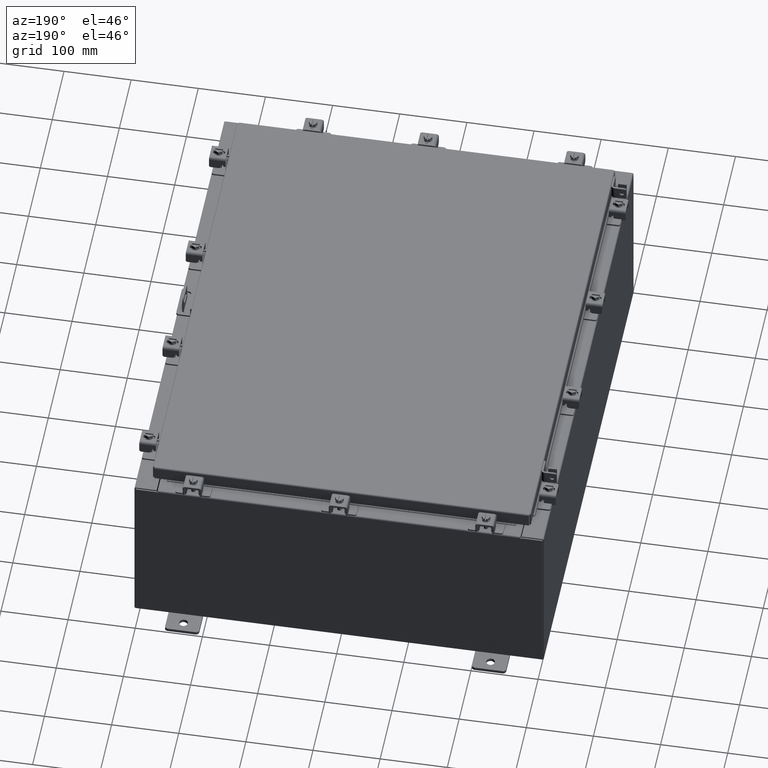
[diagram: clean part render]
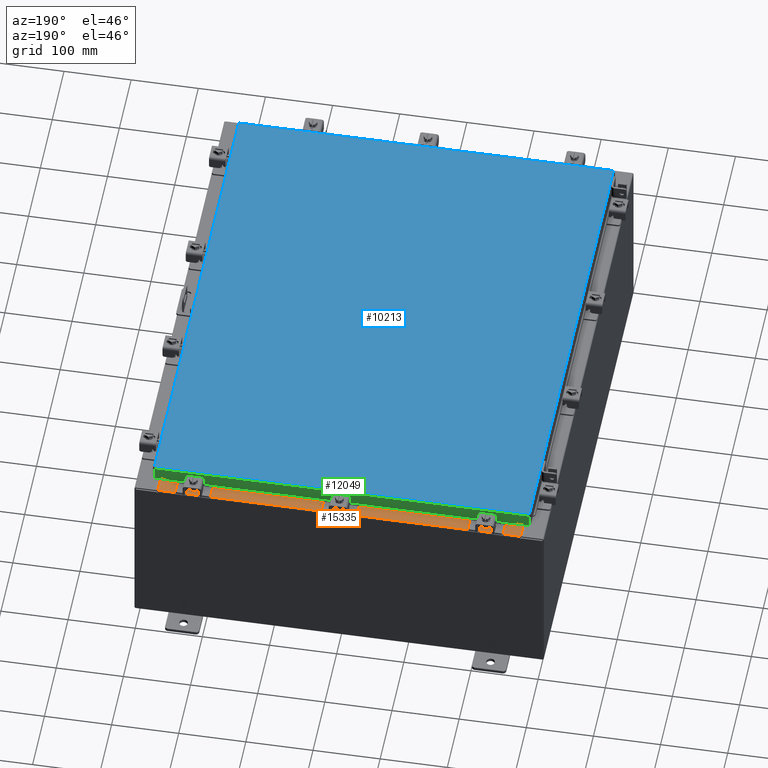
[diagram: same view with three faces highlighted in distinct colors, each labeled with its STEP entity id]
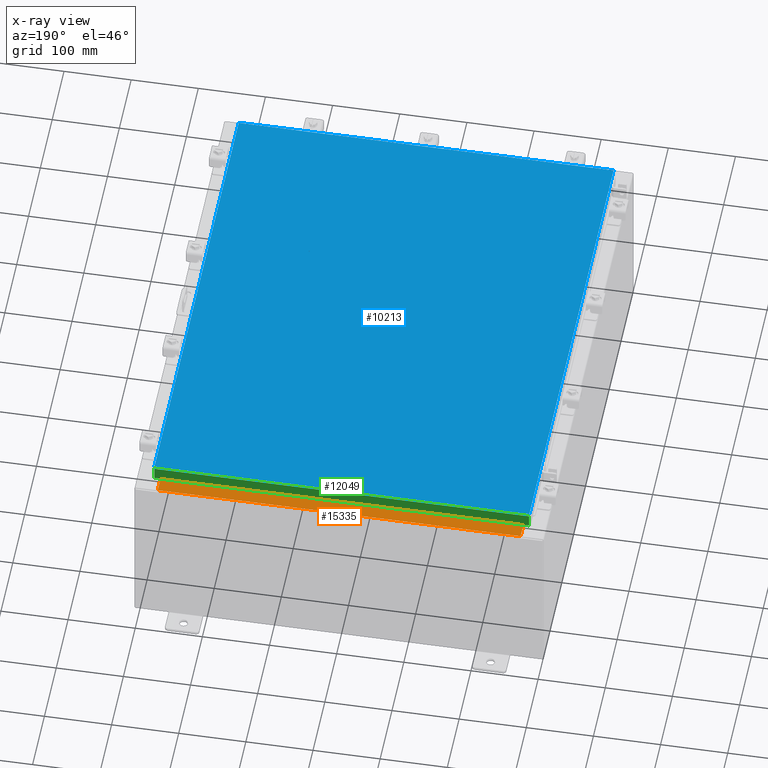
[diagram: x-ray of the same camera — body ghosted, the three highlighted faces saturated]
A machine part, auxiliary view with three faces highlighted in distinct colors.
The next image is the same camera in x-ray (body ghosted, the three faces saturated) — at least one of them is partly hidden behind the body in this view.
Their STEP definitions:

[orange] entity #15335 — the highlighted planar face has unit normal (0, 0, 1).
#137 = VERTEX_POINT ( 'NONE', #5753 ) ;
#308 = VERTEX_POINT ( 'NONE', #13334 ) ;
#342 = FACE_OUTER_BOUND ( 'NONE', #1163, .T. ) ;
#659 = ORIENTED_EDGE ( 'NONE', *, *, #22926, .F. ) ;
#1163 = EDGE_LOOP ( 'NONE', ( #2375, #17982, #659, #13737 ) ) ;
#1227 = VERTEX_POINT ( 'NONE', #4485 ) ;
#1363 = LINE ( 'NONE', #3497, #18700 ) ;
#2375 = ORIENTED_EDGE ( 'NONE', *, *, #9233, .F. ) ;
#2570 = DIRECTION ( 'NONE',  ( -0.0000000000000000000, -1.000000000000000000, 3.566381192773190000E-015 ) ) ;
#3497 = CARTESIAN_POINT ( 'NONE',  ( -10.63720000000000200, -0.07469999999999973900, 5.000000000000000000 ) ) ;
#3684 = CARTESIAN_POINT ( 'NONE',  ( 4.504626575497439200E-018, -0.08770000000000081900, 5.000000000000000000 ) ) ;
#4485 = CARTESIAN_POINT ( 'NONE',  ( 10.63720000000000200, -1.287299999999999900, 5.000000000000004400 ) ) ;
#5627 = AXIS2_PLACEMENT_3D ( 'NONE', #7990, #9772, #22293 ) ;
#5752 = VERTEX_POINT ( 'NONE', #11795 ) ;
#5753 = CARTESIAN_POINT ( 'NONE',  ( -10.63720000000000200, -1.287299999999999200, 5.000000000000004400 ) ) ;
#5959 = EDGE_CURVE ( 'NONE', #1227, #137, #16995, .T. ) ;
#7095 = DIRECTION ( 'NONE',  ( -0.0000000000000000000, 1.000000000000000000, -3.566381192773190000E-015 ) ) ;
#7990 = CARTESIAN_POINT ( 'NONE',  ( 0.0000000000000000000, 1.782631094477737600E-014, 5.000000000000000000 ) ) ;
#8158 = DIRECTION ( 'NONE',  ( -1.000000000000000000, 0.0000000000000000000, 0.0000000000000000000 ) ) ;
#8858 = LINE ( 'NONE', #3684, #13613 ) ;
#8928 = DIRECTION ( 'NONE',  ( -1.000000000000000000, -5.136404305013091600E-017, 1.831837571187793700E-031 ) ) ;
#9233 = EDGE_CURVE ( 'NONE', #137, #5752, #1363, .T. ) ;
#9760 = CARTESIAN_POINT ( 'NONE',  ( 10.63720000000000200, -1.300299999999999800, 5.000000000000004400 ) ) ;
#9772 = DIRECTION ( 'NONE',  ( 0.0000000000000000000, 3.566381192773190000E-015, 1.000000000000000000 ) ) ;
#9949 = CARTESIAN_POINT ( 'NONE',  ( 10.63720000000000400, -1.287299999999999900, 5.000000000000003600 ) ) ;
#10628 = EDGE_CURVE ( 'NONE', #308, #5752, #8858, .T. ) ;
#11653 = LINE ( 'NONE', #9760, #15798 ) ;
#11795 = CARTESIAN_POINT ( 'NONE',  ( -10.63720000000000200, -0.08770000000000081900, 5.000000000000000000 ) ) ;
#13334 = CARTESIAN_POINT ( 'NONE',  ( 10.63720000000000400, -0.08770000000000047200, 5.000000000000000000 ) ) ;
#13613 = VECTOR ( 'NONE', #8928, 39.37007874015748100 ) ;
#13737 = ORIENTED_EDGE ( 'NONE', *, *, #10628, .T. ) ;
#15335 = ADVANCED_FACE ( 'NONE', ( #342 ), #18694, .T. ) ;
#15798 = VECTOR ( 'NONE', #2570, 39.37007874015748100 ) ;
#16430 = VECTOR ( 'NONE', #8158, 39.37007874015748100 ) ;
#16995 = LINE ( 'NONE', #9949, #16430 ) ;
#17982 = ORIENTED_EDGE ( 'NONE', *, *, #5959, .F. ) ;
#18694 = PLANE ( 'NONE',  #5627 ) ;
#18700 = VECTOR ( 'NONE', #7095, 39.37007874015748100 ) ;
#22293 = DIRECTION ( 'NONE',  ( 0.0000000000000000000, -1.000000000000000000, 3.566381192773190000E-015 ) ) ;
#22926 = EDGE_CURVE ( 'NONE', #308, #1227, #11653, .T. ) ;

[blue] entity #10213 — the highlighted planar face has unit normal (0, 0, -1).
#192 = LINE ( 'NONE', #18948, #4414 ) ;
#268 = EDGE_CURVE ( 'NONE', #20291, #5215, #19811, .T. ) ;
#865 = CARTESIAN_POINT ( 'NONE',  ( 0.0000000000000000000, 0.0000000000000000000, 0.0000000000000000000 ) ) ;
#1592 = CARTESIAN_POINT ( 'NONE',  ( -10.99030000000000000, 14.00630000000000100, -2.048885995248197400E-016 ) ) ;
#2681 = DIRECTION ( 'NONE',  ( -1.000000000000000000, 0.0000000000000000000, -0.0000000000000000000 ) ) ;
#2910 = DIRECTION ( 'NONE',  ( 0.0000000000000000000, 1.000000000000000000, 0.0000000000000000000 ) ) ;
#2995 = CARTESIAN_POINT ( 'NONE',  ( 10.99030000000000000, 14.00629999999999800, -2.048885995248197400E-016 ) ) ;
#3641 = CARTESIAN_POINT ( 'NONE',  ( 10.99030000000000000, 14.00629999999999800, -2.048885995248197400E-016 ) ) ;
#4085 = VECTOR ( 'NONE', #17930, 39.37007874015748100 ) ;
#4128 = CARTESIAN_POINT ( 'NONE',  ( 10.99030000000000000, -14.00629999999999800, -2.048885995248197400E-016 ) ) ;
#4414 = VECTOR ( 'NONE', #2910, 39.37007874015748100 ) ;
#5074 = AXIS2_PLACEMENT_3D ( 'NONE', #865, #13399, #2681 ) ;
#5109 = ORIENTED_EDGE ( 'NONE', *, *, #14207, .T. ) ;
#5215 = VERTEX_POINT ( 'NONE', #4128 ) ;
#6059 = DIRECTION ( 'NONE',  ( 1.000000000000000000, -0.0000000000000000000, -0.0000000000000000000 ) ) ;
#6339 = CARTESIAN_POINT ( 'NONE',  ( -10.99030000000000000, 14.00630000000000100, -2.048885995248197400E-016 ) ) ;
#7171 = EDGE_CURVE ( 'NONE', #14930, #18723, #14129, .T. ) ;
#7854 = CARTESIAN_POINT ( 'NONE',  ( -10.99029999999999600, -14.00629999999999800, -2.219626494852214000E-016 ) ) ;
#8070 = DIRECTION ( 'NONE',  ( 0.0000000000000000000, -1.000000000000000000, 0.0000000000000000000 ) ) ;
#10213 = ADVANCED_FACE ( 'NONE', ( #20915 ), #11603, .F. ) ;
#10334 = EDGE_CURVE ( 'NONE', #5215, #14930, #192, .T. ) ;
#11603 = PLANE ( 'NONE',  #5074 ) ;
#13399 = DIRECTION ( 'NONE',  ( 0.0000000000000000000, 0.0000000000000000000, -1.000000000000000000 ) ) ;
#14129 = LINE ( 'NONE', #3641, #4085 ) ;
#14207 = EDGE_CURVE ( 'NONE', #18723, #20291, #15752, .T. ) ;
#14930 = VERTEX_POINT ( 'NONE', #2995 ) ;
#15007 = VECTOR ( 'NONE', #6059, 39.37007874015748100 ) ;
#15752 = LINE ( 'NONE', #6339, #20006 ) ;
#15756 = ORIENTED_EDGE ( 'NONE', *, *, #268, .T. ) ;
#17930 = DIRECTION ( 'NONE',  ( -1.000000000000000000, -0.0000000000000000000, -0.0000000000000000000 ) ) ;
#18723 = VERTEX_POINT ( 'NONE', #1592 ) ;
#18948 = CARTESIAN_POINT ( 'NONE',  ( 10.99030000000000000, -14.00629999999999800, -2.048885995248197400E-016 ) ) ;
#19049 = CARTESIAN_POINT ( 'NONE',  ( -10.99029999999999800, -14.00629999999999800, -2.048885995248197400E-016 ) ) ;
#19811 = LINE ( 'NONE', #7854, #15007 ) ;
#20006 = VECTOR ( 'NONE', #8070, 39.37007874015748100 ) ;
#20280 = ORIENTED_EDGE ( 'NONE', *, *, #10334, .T. ) ;
#20291 = VERTEX_POINT ( 'NONE', #19049 ) ;
#20306 = EDGE_LOOP ( 'NONE', ( #15756, #20280, #21759, #5109 ) ) ;
#20915 = FACE_OUTER_BOUND ( 'NONE', #20306, .T. ) ;
#21759 = ORIENTED_EDGE ( 'NONE', *, *, #7171, .T. ) ;

[green] entity #12049 — the highlighted planar face has unit normal (0, -1, -0).
#1510 = VERTEX_POINT ( 'NONE', #10704 ) ;
#1531 = VERTEX_POINT ( 'NONE', #5383 ) ;
#3291 = EDGE_CURVE ( 'NONE', #11038, #16723, #22775, .T. ) ;
#3509 = VECTOR ( 'NONE', #14411, 39.37007874015748100 ) ;
#4467 = CARTESIAN_POINT ( 'NONE',  ( -4.898647335700341400E-030, 14.09399999999999900, 3.999012166344507700E-014 ) ) ;
#4956 = LINE ( 'NONE', #20340, #14444 ) ;
#4982 = DIRECTION ( 'NONE',  ( -0.0000000000000000000, 2.818880942772350300E-015, -1.000000000000000000 ) ) ;
#5383 = CARTESIAN_POINT ( 'NONE',  ( -10.23915786437626700, 14.09399999999999900, -0.8500000000000033100 ) ) ;
#5431 = CARTESIAN_POINT ( 'NONE',  ( -10.23915786437626700, 14.09399999999999900, -0.8500000000000033100 ) ) ;
#5818 = VECTOR ( 'NONE', #12316, 39.37007874015748100 ) ;
#6014 = DIRECTION ( 'NONE',  ( -1.000000000000000000, -3.475696988576942200E-031, -9.473942235605600700E-046 ) ) ;
#6155 = ORIENTED_EDGE ( 'NONE', *, *, #15976, .F. ) ;
#6289 = ORIENTED_EDGE ( 'NONE', *, *, #18716, .T. ) ;
#6347 = LINE ( 'NONE', #16798, #9409 ) ;
#6561 = EDGE_CURVE ( 'NONE', #17961, #1531, #6347, .T. ) ;
#6799 = CARTESIAN_POINT ( 'NONE',  ( 10.98915786437626700, 14.09400000000000100, -0.8499999999999996400 ) ) ;
#6829 = CARTESIAN_POINT ( 'NONE',  ( -10.98915786437626900, 14.09399999999999900, -0.07469999999999978000 ) ) ;
#7194 = EDGE_CURVE ( 'NONE', #1531, #11038, #8283, .T. ) ;
#7623 = CARTESIAN_POINT ( 'NONE',  ( -11.07799999999999900, 14.09400000000000100, -0.8500000000000024200 ) ) ;
#8052 = PLANE ( 'NONE',  #9573 ) ;
#8283 = LINE ( 'NONE', #5431, #3509 ) ;
#8531 = VECTOR ( 'NONE', #14728, 39.37007874015748100 ) ;
#9409 = VECTOR ( 'NONE', #11496, 39.37007874015748100 ) ;
#9573 = AXIS2_PLACEMENT_3D ( 'NONE', #4467, #20560, #9828 ) ;
#9828 = DIRECTION ( 'NONE',  ( 0.0000000000000000000, 2.818880942772350300E-015, -1.000000000000000000 ) ) ;
#10704 = CARTESIAN_POINT ( 'NONE',  ( 10.98915786437626700, 14.09399999999999900, -0.08770000000000007000 ) ) ;
#11038 = VERTEX_POINT ( 'NONE', #13838 ) ;
#11241 = VECTOR ( 'NONE', #4982, 39.37007874015748100 ) ;
#11496 = DIRECTION ( 'NONE',  ( 1.000000000000000000, -4.379057701015054300E-047, 1.233005954894504400E-016 ) ) ;
#12049 = ADVANCED_FACE ( 'NONE', ( #12488 ), #8052, .F. ) ;
#12119 = ORIENTED_EDGE ( 'NONE', *, *, #3291, .F. ) ;
#12316 = DIRECTION ( 'NONE',  ( 0.0000000000000000000, 2.818880942772350300E-015, -1.000000000000000000 ) ) ;
#12488 = FACE_OUTER_BOUND ( 'NONE', #22782, .T. ) ;
#13838 = CARTESIAN_POINT ( 'NONE',  ( 10.23915786437626700, 14.09399999999999900, -0.8500000000000033100 ) ) ;
#14392 = VERTEX_POINT ( 'NONE', #21380 ) ;
#14411 = DIRECTION ( 'NONE',  ( 1.000000000000000000, -0.0000000000000000000, -0.0000000000000000000 ) ) ;
#14444 = VECTOR ( 'NONE', #6014, 39.37007874015748100 ) ;
#14728 = DIRECTION ( 'NONE',  ( 1.000000000000000000, -4.379057701015054300E-047, 1.233005954894504400E-016 ) ) ;
#14998 = ORIENTED_EDGE ( 'NONE', *, *, #19484, .F. ) ;
#15976 = EDGE_CURVE ( 'NONE', #14392, #17961, #20749, .T. ) ;
#16673 = ORIENTED_EDGE ( 'NONE', *, *, #7194, .F. ) ;
#16723 = VERTEX_POINT ( 'NONE', #6799 ) ;
#16798 = CARTESIAN_POINT ( 'NONE',  ( -11.07799999999999900, 14.09400000000000100, -0.8500000000000024200 ) ) ;
#17123 = ORIENTED_EDGE ( 'NONE', *, *, #6561, .F. ) ;
#17961 = VERTEX_POINT ( 'NONE', #22884 ) ;
#18716 = EDGE_CURVE ( 'NONE', #1510, #16723, #23139, .T. ) ;
#19484 = EDGE_CURVE ( 'NONE', #1510, #14392, #4956, .T. ) ;
#20340 = CARTESIAN_POINT ( 'NONE',  ( -11.07799999999999900, 14.09399999999999900, -0.08770000000000007000 ) ) ;
#20560 = DIRECTION ( 'NONE',  ( 3.475696988576941300E-031, -1.000000000000000000, -2.818880942772350300E-015 ) ) ;
#20749 = LINE ( 'NONE', #6829, #11241 ) ;
#21380 = CARTESIAN_POINT ( 'NONE',  ( -10.98915786437626700, 14.09399999999999900, -0.08770000000000007000 ) ) ;
#22775 = LINE ( 'NONE', #7623, #8531 ) ;
#22782 = EDGE_LOOP ( 'NONE', ( #14998, #6289, #12119, #16673, #17123, #6155 ) ) ;
#22884 = CARTESIAN_POINT ( 'NONE',  ( -10.98915786437626900, 14.09400000000000100, -0.8500000000000024200 ) ) ;
#22993 = CARTESIAN_POINT ( 'NONE',  ( 10.98915786437626900, 14.09399999999999900, 3.999012166344507700E-014 ) ) ;
#23139 = LINE ( 'NONE', #22993, #5818 ) ;